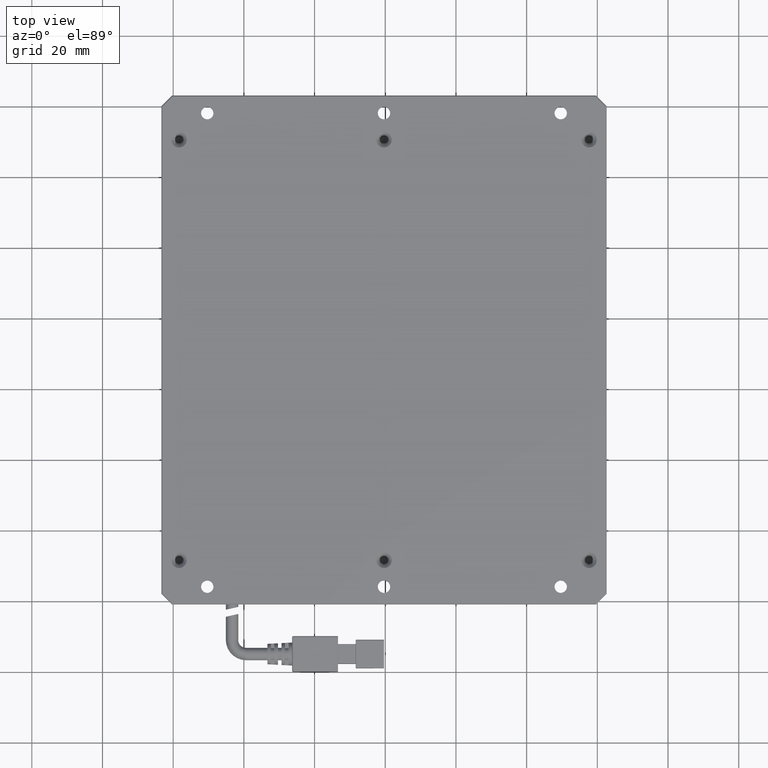
[diagram: clean part render]
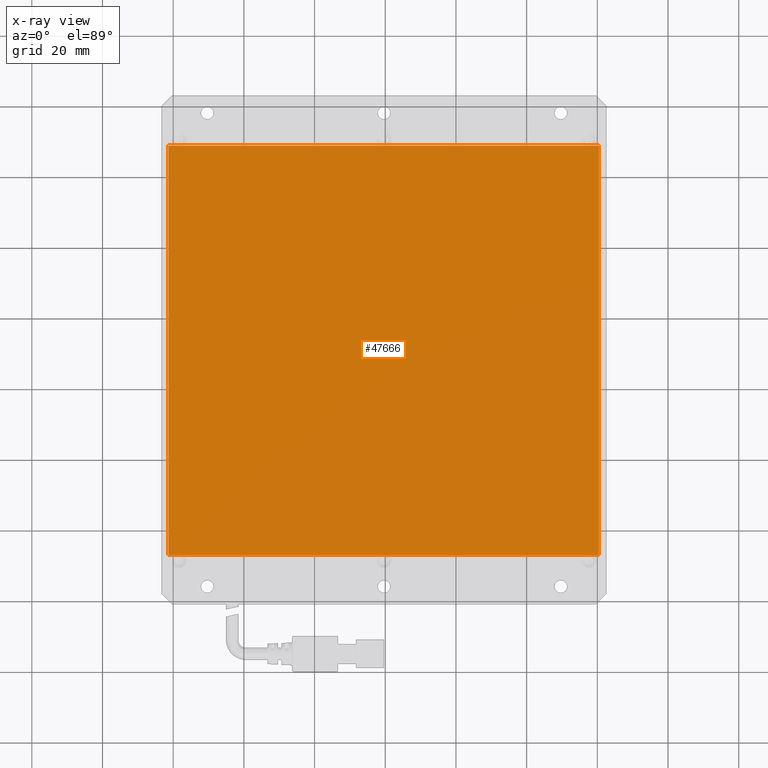
[diagram: x-ray — body ghosted, one internal face saturated and labeled with its STEP entity id]
A machine part, top view, then the same camera in x-ray: the body is ghosted and one INTERNAL B-rep face — a face not visible from any outside direction — is saturated and labeled: STEP entity #47666.
In plain terms, the highlighted planar face has unit normal (0, 0, 1).
Its self-contained STEP definition (entity closure, byte-faithful):
#6505 = VECTOR ( 'NONE', #89131, 1000.000000000000000 ) ;
#7091 = VECTOR ( 'NONE', #13601, 1000.000000000000000 ) ;
#9253 = VECTOR ( 'NONE', #25122, 1000.000000000000000 ) ;
#10907 = CARTESIAN_POINT ( 'NONE',  ( -61.35509736540661400, 68.68965253913710000, 13.99999999998362900 ) ) ;
#11193 = DIRECTION ( 'NONE',  ( 0.0000000000000000000, 0.0000000000000000000, 1.000000000000000000 ) ) ;
#13601 = DIRECTION ( 'NONE',  ( 2.220446049250312600E-016, -1.000000000000000000, -0.0000000000000000000 ) ) ;
#25122 = DIRECTION ( 'NONE',  ( -2.220446049250312600E-016, 1.000000000000000000, 0.0000000000000000000 ) ) ;
#29734 = LINE ( 'NONE', #10907, #6505 ) ;
#31178 = ORIENTED_EDGE ( 'NONE', *, *, #62960, .T. ) ;
#33386 = CARTESIAN_POINT ( 'NONE',  ( 60.44490263459341900, -47.11034746086287600, 13.99999999998362900 ) ) ;
#33831 = VERTEX_POINT ( 'NONE', #48340 ) ;
#35947 = ORIENTED_EDGE ( 'NONE', *, *, #51094, .T. ) ;
#36109 = DIRECTION ( 'NONE',  ( 1.000000000000000000, 2.220446049250312600E-016, -0.0000000000000000000 ) ) ;
#40817 = VERTEX_POINT ( 'NONE', #86808 ) ;
#41449 = AXIS2_PLACEMENT_3D ( 'NONE', #57994, #11193, #65879 ) ;
#46425 = CARTESIAN_POINT ( 'NONE',  ( -61.35509736540658600, -47.11034746086289700, 13.99999999998362900 ) ) ;
#46535 = EDGE_CURVE ( 'NONE', #100511, #40817, #50830, .T. ) ;
#47666 = ADVANCED_FACE ( 'NONE', ( #90616 ), #65541, .T. ) ;
#48340 = CARTESIAN_POINT ( 'NONE',  ( -61.35509736540661400, 68.68965253913710000, 13.99999999998362900 ) ) ;
#50830 = LINE ( 'NONE', #86988, #9253 ) ;
#51094 = EDGE_CURVE ( 'NONE', #53276, #100511, #58787, .T. ) ;
#51711 = EDGE_LOOP ( 'NONE', ( #70427, #31178, #35947, #68173 ) ) ;
#53276 = VERTEX_POINT ( 'NONE', #46425 ) ;
#56329 = VECTOR ( 'NONE', #36109, 1000.000000000000000 ) ;
#57994 = CARTESIAN_POINT ( 'NONE',  ( -61.35509736540658600, -47.11034746086287600, 13.99999999998362900 ) ) ;
#58787 = LINE ( 'NONE', #75097, #56329 ) ;
#60378 = CARTESIAN_POINT ( 'NONE',  ( -61.35509736540658600, -47.11034746086287600, 13.99999999998362900 ) ) ;
#62960 = EDGE_CURVE ( 'NONE', #33831, #53276, #66996, .T. ) ;
#65541 = PLANE ( 'NONE',  #41449 ) ;
#65879 = DIRECTION ( 'NONE',  ( -2.220446049250312600E-016, 1.000000000000000000, 0.0000000000000000000 ) ) ;
#66996 = LINE ( 'NONE', #60378, #7091 ) ;
#68173 = ORIENTED_EDGE ( 'NONE', *, *, #46535, .T. ) ;
#70427 = ORIENTED_EDGE ( 'NONE', *, *, #75041, .T. ) ;
#75041 = EDGE_CURVE ( 'NONE', #40817, #33831, #29734, .T. ) ;
#75097 = CARTESIAN_POINT ( 'NONE',  ( -61.35509736540658600, -47.11034746086289700, 13.99999999998362900 ) ) ;
#86808 = CARTESIAN_POINT ( 'NONE',  ( 60.44490263459339000, 68.68965253913712800, 13.99999999998362900 ) ) ;
#86988 = CARTESIAN_POINT ( 'NONE',  ( 60.44490263459341900, -47.11034746086284700, 13.99999999998362900 ) ) ;
#89131 = DIRECTION ( 'NONE',  ( -1.000000000000000000, -2.220446049250312600E-016, 0.0000000000000000000 ) ) ;
#90616 = FACE_OUTER_BOUND ( 'NONE', #51711, .T. ) ;
#100511 = VERTEX_POINT ( 'NONE', #33386 ) ;